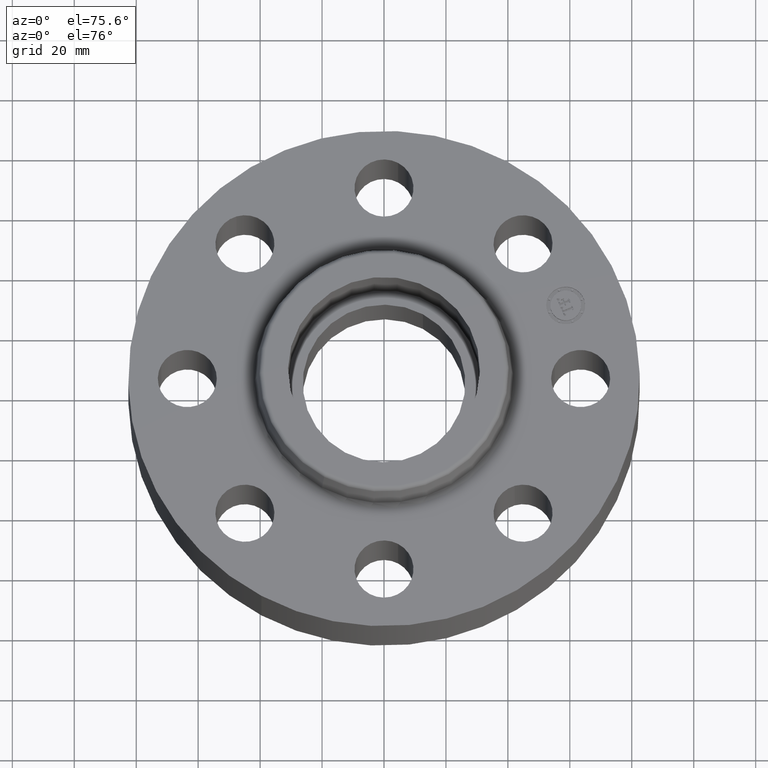
[diagram: clean part render]
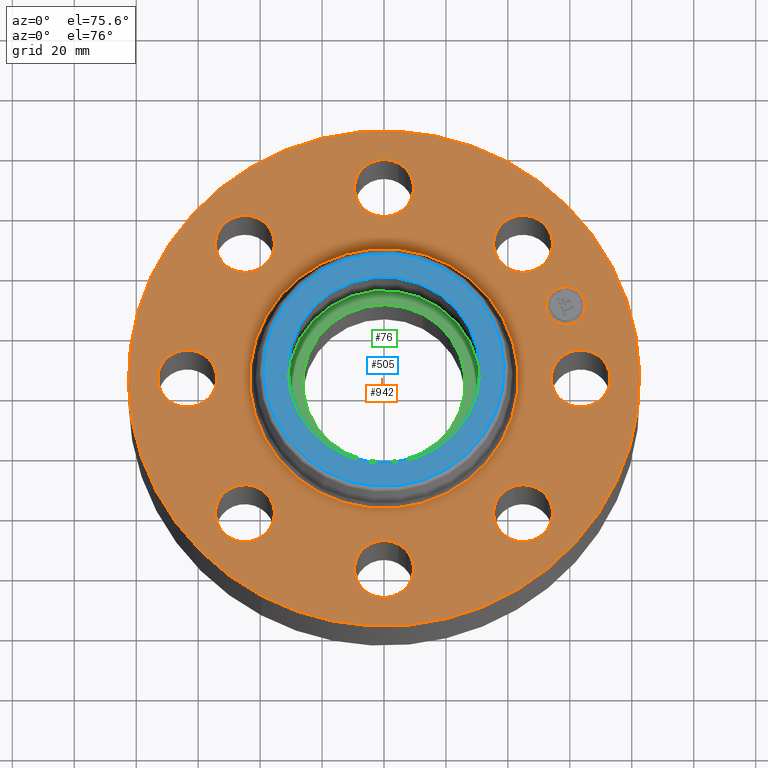
[diagram: same view with three faces highlighted in distinct colors, each labeled with its STEP entity id]
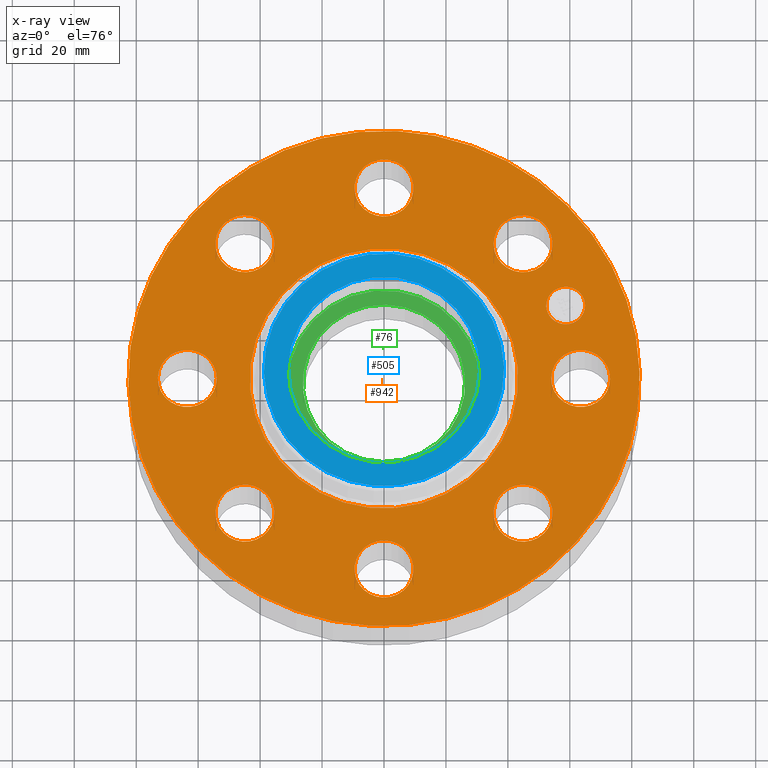
[diagram: x-ray of the same camera — body ghosted, the three highlighted faces saturated]
A machine part, auxiliary view with three faces highlighted in distinct colors.
The next image is the same camera in x-ray (body ghosted, the three faces saturated) — at least one of them is partly hidden behind the body in this view.
Their STEP definitions:

[orange] entity #942 — the highlighted planar face has unit normal (0, 0, -1).
#306=AXIS2_PLACEMENT_3D('Circle Axis2P3D',#304,#305,$) ;
#325=AXIS2_PLACEMENT_3D('Circle Axis2P3D',#323,#324,$) ;
#342=AXIS2_PLACEMENT_3D('Circle Axis2P3D',#340,#341,$) ;
#377=AXIS2_PLACEMENT_3D('Circle Axis2P3D',#375,#376,$) ;
#527=AXIS2_PLACEMENT_3D('Circle Axis2P3D',#525,#526,$) ;
#539=AXIS2_PLACEMENT_3D('Circle Axis2P3D',#537,#538,$) ;
#570=AXIS2_PLACEMENT_3D('Circle Axis2P3D',#568,#569,$) ;
#582=AXIS2_PLACEMENT_3D('Circle Axis2P3D',#580,#581,$) ;
#613=AXIS2_PLACEMENT_3D('Circle Axis2P3D',#611,#612,$) ;
#625=AXIS2_PLACEMENT_3D('Circle Axis2P3D',#623,#624,$) ;
#656=AXIS2_PLACEMENT_3D('Circle Axis2P3D',#654,#655,$) ;
#668=AXIS2_PLACEMENT_3D('Circle Axis2P3D',#666,#667,$) ;
#699=AXIS2_PLACEMENT_3D('Circle Axis2P3D',#697,#698,$) ;
#711=AXIS2_PLACEMENT_3D('Circle Axis2P3D',#709,#710,$) ;
#742=AXIS2_PLACEMENT_3D('Circle Axis2P3D',#740,#741,$) ;
#754=AXIS2_PLACEMENT_3D('Circle Axis2P3D',#752,#753,$) ;
#785=AXIS2_PLACEMENT_3D('Circle Axis2P3D',#783,#784,$) ;
#797=AXIS2_PLACEMENT_3D('Circle Axis2P3D',#795,#796,$) ;
#828=AXIS2_PLACEMENT_3D('Circle Axis2P3D',#826,#827,$) ;
#840=AXIS2_PLACEMENT_3D('Circle Axis2P3D',#838,#839,$) ;
#882=AXIS2_PLACEMENT_3D('Plane Axis2P3D',#879,#880,#881) ;
#926=AXIS2_PLACEMENT_3D('Circle Axis2P3D',#924,#925,$) ;
#935=AXIS2_PLACEMENT_3D('Circle Axis2P3D',#933,#934,$) ;
#301=CARTESIAN_POINT('Vertex',(-1.55813300047,-2.85214332616,1.)) ;
#304=CARTESIAN_POINT('Axis2P3D Location',(0.,0.,1.)) ;
#308=CARTESIAN_POINT('Vertex',(1.55813300047,2.85214332616,1.)) ;
#323=CARTESIAN_POINT('Axis2P3D Location',(0.,0.,1.)) ;
#340=CARTESIAN_POINT('Axis2P3D Location',(0.,0.,1.)) ;
#344=CARTESIAN_POINT('Vertex',(0.81758641395,1.49658189218,1.)) ;
#346=CARTESIAN_POINT('Vertex',(-0.81758641395,-1.49658189218,1.)) ;
#375=CARTESIAN_POINT('Axis2P3D Location',(0.,0.,1.)) ;
#515=CARTESIAN_POINT('Vertex',(2.12759806422,1.87334427715,1.)) ;
#522=CARTESIAN_POINT('Vertex',(1.40793584173,1.66218962879,1.)) ;
#525=CARTESIAN_POINT('Axis2P3D Location',(1.76776695297,1.76776695297,1.)) ;
#537=CARTESIAN_POINT('Axis2P3D Location',(1.76776695297,1.76776695297,1.)) ;
#558=CARTESIAN_POINT('Vertex',(0.179784576977,2.82909346072,1.)) ;
#565=CARTESIAN_POINT('Vertex',(-0.179784576977,2.1709065393,1.)) ;
#568=CARTESIAN_POINT('Axis2P3D Location',(-4.59242549682E-016,2.50000000001,1.)) ;
#580=CARTESIAN_POINT('Axis2P3D Location',(-4.59242549682E-016,2.50000000001,1.)) ;
#601=CARTESIAN_POINT('Vertex',(-1.87334427715,2.12759806422,1.)) ;
#608=CARTESIAN_POINT('Vertex',(-1.66218962879,1.40793584173,1.)) ;
#611=CARTESIAN_POINT('Axis2P3D Location',(-1.76776695297,1.76776695297,1.)) ;
#623=CARTESIAN_POINT('Axis2P3D Location',(-1.76776695297,1.76776695297,1.)) ;
#644=CARTESIAN_POINT('Vertex',(-2.82909346072,0.179784576977,1.)) ;
#651=CARTESIAN_POINT('Vertex',(-2.1709065393,-0.179784576977,1.)) ;
#654=CARTESIAN_POINT('Axis2P3D Location',(-2.50000000001,-3.06161699788E-016,1.)) ;
#666=CARTESIAN_POINT('Axis2P3D Location',(-2.50000000001,-3.06161699788E-016,1.)) ;
#687=CARTESIAN_POINT('Vertex',(-2.12759806422,-1.87334427715,1.)) ;
#694=CARTESIAN_POINT('Vertex',(-1.40793584173,-1.66218962879,1.)) ;
#697=CARTESIAN_POINT('Axis2P3D Location',(-1.76776695297,-1.76776695297,1.)) ;
#709=CARTESIAN_POINT('Axis2P3D Location',(-1.76776695297,-1.76776695297,1.)) ;
#730=CARTESIAN_POINT('Vertex',(-0.179784576977,-2.82909346072,1.)) ;
#737=CARTESIAN_POINT('Vertex',(0.179784576977,-2.1709065393,1.)) ;
#740=CARTESIAN_POINT('Axis2P3D Location',(1.53080849894E-016,-2.50000000001,1.)) ;
#752=CARTESIAN_POINT('Axis2P3D Location',(1.53080849894E-016,-2.50000000001,1.)) ;
#773=CARTESIAN_POINT('Vertex',(1.87334427715,-2.12759806422,1.)) ;
#780=CARTESIAN_POINT('Vertex',(1.66218962879,-1.40793584173,1.)) ;
#783=CARTESIAN_POINT('Axis2P3D Location',(1.76776695297,-1.76776695297,1.)) ;
#795=CARTESIAN_POINT('Axis2P3D Location',(1.76776695297,-1.76776695297,1.)) ;
#816=CARTESIAN_POINT('Vertex',(2.1709065393,0.179784576977,1.)) ;
#823=CARTESIAN_POINT('Vertex',(2.82909346072,-0.179784576977,1.)) ;
#826=CARTESIAN_POINT('Axis2P3D Location',(2.50000000001,0.,1.)) ;
#838=CARTESIAN_POINT('Axis2P3D Location',(2.50000000001,0.,1.)) ;
#879=CARTESIAN_POINT('Axis2P3D Location',(0.,3.25000000001,1.)) ;
#924=CARTESIAN_POINT('Axis2P3D Location',(2.30969883129,0.956708580917,1.)) ;
#928=CARTESIAN_POINT('Vertex',(2.21498468178,1.18536876521,1.)) ;
#930=CARTESIAN_POINT('Vertex',(2.4044129808,0.728048396619,1.)) ;
#933=CARTESIAN_POINT('Axis2P3D Location',(2.30969883129,0.956708580917,1.)) ;
#305=DIRECTION('Axis2P3D Direction',(0.,0.,-0.0393700787402)) ;
#324=DIRECTION('Axis2P3D Direction',(0.,0.,-0.0393700787402)) ;
#341=DIRECTION('Axis2P3D Direction',(0.,0.,-0.0393700787402)) ;
#376=DIRECTION('Axis2P3D Direction',(0.,0.,-0.0393700787402)) ;
#526=DIRECTION('Axis2P3D Direction',(0.,0.,-0.0393700787402)) ;
#538=DIRECTION('Axis2P3D Direction',(0.,0.,-0.0393700787402)) ;
#569=DIRECTION('Axis2P3D Direction',(0.,0.,-0.0393700787402)) ;
#581=DIRECTION('Axis2P3D Direction',(0.,0.,-0.0393700787402)) ;
#612=DIRECTION('Axis2P3D Direction',(0.,0.,-0.0393700787402)) ;
#624=DIRECTION('Axis2P3D Direction',(0.,0.,-0.0393700787402)) ;
#655=DIRECTION('Axis2P3D Direction',(-0.,0.,-0.0393700787402)) ;
#667=DIRECTION('Axis2P3D Direction',(-0.,0.,-0.0393700787402)) ;
#698=DIRECTION('Axis2P3D Direction',(-0.,0.,-0.0393700787402)) ;
#710=DIRECTION('Axis2P3D Direction',(-0.,0.,-0.0393700787402)) ;
#741=DIRECTION('Axis2P3D Direction',(0.,-0.,-0.0393700787402)) ;
#753=DIRECTION('Axis2P3D Direction',(0.,-0.,-0.0393700787402)) ;
#784=DIRECTION('Axis2P3D Direction',(0.,-0.,-0.0393700787402)) ;
#796=DIRECTION('Axis2P3D Direction',(0.,-0.,-0.0393700787402)) ;
#827=DIRECTION('Axis2P3D Direction',(0.,-0.,-0.0393700787402)) ;
#839=DIRECTION('Axis2P3D Direction',(0.,-0.,-0.0393700787402)) ;
#880=DIRECTION('Axis2P3D Direction',(0.,0.,-0.0393700787402)) ;
#881=DIRECTION('Axis2P3D XDirection',(0.0393700787402,0.,0.)) ;
#925=DIRECTION('Axis2P3D Direction',(0.,0.,-0.0393700787402)) ;
#934=DIRECTION('Axis2P3D Direction',(0.,0.,-0.0393700787402)) ;
#885=ORIENTED_EDGE('',*,*,#327,.F.) ;
#886=ORIENTED_EDGE('',*,*,#310,.F.) ;
#889=ORIENTED_EDGE('',*,*,#830,.T.) ;
#890=ORIENTED_EDGE('',*,*,#842,.T.) ;
#893=ORIENTED_EDGE('',*,*,#379,.T.) ;
#894=ORIENTED_EDGE('',*,*,#348,.T.) ;
#897=ORIENTED_EDGE('',*,*,#787,.T.) ;
#898=ORIENTED_EDGE('',*,*,#799,.T.) ;
#901=ORIENTED_EDGE('',*,*,#744,.T.) ;
#902=ORIENTED_EDGE('',*,*,#756,.T.) ;
#905=ORIENTED_EDGE('',*,*,#701,.T.) ;
#906=ORIENTED_EDGE('',*,*,#713,.T.) ;
#909=ORIENTED_EDGE('',*,*,#658,.T.) ;
#910=ORIENTED_EDGE('',*,*,#670,.T.) ;
#913=ORIENTED_EDGE('',*,*,#615,.T.) ;
#914=ORIENTED_EDGE('',*,*,#627,.T.) ;
#917=ORIENTED_EDGE('',*,*,#572,.T.) ;
#918=ORIENTED_EDGE('',*,*,#584,.T.) ;
#921=ORIENTED_EDGE('',*,*,#529,.T.) ;
#922=ORIENTED_EDGE('',*,*,#541,.T.) ;
#939=ORIENTED_EDGE('',*,*,#932,.T.) ;
#940=ORIENTED_EDGE('',*,*,#937,.T.) ;
#891=FACE_BOUND('',#888,.T.) ;
#895=FACE_BOUND('',#892,.T.) ;
#899=FACE_BOUND('',#896,.T.) ;
#903=FACE_BOUND('',#900,.T.) ;
#907=FACE_BOUND('',#904,.T.) ;
#911=FACE_BOUND('',#908,.T.) ;
#915=FACE_BOUND('',#912,.T.) ;
#919=FACE_BOUND('',#916,.T.) ;
#923=FACE_BOUND('',#920,.T.) ;
#941=FACE_BOUND('',#938,.T.) ;
#942=ADVANCED_FACE('PartBody',(#887,#891,#895,#899,#903,#907,#911,#915,#919,#923,#941),#883,.F.) ;
#307=CIRCLE('generated circle',#306,3.25000000001) ;
#326=CIRCLE('generated circle',#325,3.25000000001) ;
#343=CIRCLE('generated circle',#342,1.70534597788) ;
#378=CIRCLE('generated circle',#377,1.70534597788) ;
#528=CIRCLE('generated circle',#527,0.375000000001) ;
#540=CIRCLE('generated circle',#539,0.375000000001) ;
#571=CIRCLE('generated circle',#570,0.375000000002) ;
#583=CIRCLE('generated circle',#582,0.375000000002) ;
#614=CIRCLE('generated circle',#613,0.375000000001) ;
#626=CIRCLE('generated circle',#625,0.375000000001) ;
#657=CIRCLE('generated circle',#656,0.375000000001) ;
#669=CIRCLE('generated circle',#668,0.375000000001) ;
#700=CIRCLE('generated circle',#699,0.375000000001) ;
#712=CIRCLE('generated circle',#711,0.375000000001) ;
#743=CIRCLE('generated circle',#742,0.375000000002) ;
#755=CIRCLE('generated circle',#754,0.375000000002) ;
#786=CIRCLE('generated circle',#785,0.375000000001) ;
#798=CIRCLE('generated circle',#797,0.375000000001) ;
#829=CIRCLE('generated circle',#828,0.375000000002) ;
#841=CIRCLE('generated circle',#840,0.375000000002) ;
#927=CIRCLE('generated circle',#926,0.247500000001) ;
#936=CIRCLE('generated circle',#935,0.247500000001) ;
#310=EDGE_CURVE('',#302,#309,#307,.T.) ;
#327=EDGE_CURVE('',#309,#302,#326,.T.) ;
#348=EDGE_CURVE('',#345,#347,#343,.T.) ;
#379=EDGE_CURVE('',#347,#345,#378,.T.) ;
#529=EDGE_CURVE('',#516,#523,#528,.T.) ;
#541=EDGE_CURVE('',#523,#516,#540,.T.) ;
#572=EDGE_CURVE('',#559,#566,#571,.T.) ;
#584=EDGE_CURVE('',#566,#559,#583,.T.) ;
#615=EDGE_CURVE('',#602,#609,#614,.T.) ;
#627=EDGE_CURVE('',#609,#602,#626,.T.) ;
#658=EDGE_CURVE('',#645,#652,#657,.T.) ;
#670=EDGE_CURVE('',#652,#645,#669,.T.) ;
#701=EDGE_CURVE('',#688,#695,#700,.T.) ;
#713=EDGE_CURVE('',#695,#688,#712,.T.) ;
#744=EDGE_CURVE('',#731,#738,#743,.T.) ;
#756=EDGE_CURVE('',#738,#731,#755,.T.) ;
#787=EDGE_CURVE('',#774,#781,#786,.T.) ;
#799=EDGE_CURVE('',#781,#774,#798,.T.) ;
#830=EDGE_CURVE('',#817,#824,#829,.T.) ;
#842=EDGE_CURVE('',#824,#817,#841,.T.) ;
#932=EDGE_CURVE('',#929,#931,#927,.T.) ;
#937=EDGE_CURVE('',#931,#929,#936,.T.) ;
#884=EDGE_LOOP('',(#885,#886)) ;
#888=EDGE_LOOP('',(#889,#890)) ;
#892=EDGE_LOOP('',(#893,#894)) ;
#896=EDGE_LOOP('',(#897,#898)) ;
#900=EDGE_LOOP('',(#901,#902)) ;
#904=EDGE_LOOP('',(#905,#906)) ;
#908=EDGE_LOOP('',(#909,#910)) ;
#912=EDGE_LOOP('',(#913,#914)) ;
#916=EDGE_LOOP('',(#917,#918)) ;
#920=EDGE_LOOP('',(#921,#922)) ;
#938=EDGE_LOOP('',(#939,#940)) ;
#887=FACE_OUTER_BOUND('',#884,.T.) ;
#883=PLANE('',#882) ;
#302=VERTEX_POINT('',#301) ;
#309=VERTEX_POINT('',#308) ;
#345=VERTEX_POINT('',#344) ;
#347=VERTEX_POINT('',#346) ;
#516=VERTEX_POINT('',#515) ;
#523=VERTEX_POINT('',#522) ;
#559=VERTEX_POINT('',#558) ;
#566=VERTEX_POINT('',#565) ;
#602=VERTEX_POINT('',#601) ;
#609=VERTEX_POINT('',#608) ;
#645=VERTEX_POINT('',#644) ;
#652=VERTEX_POINT('',#651) ;
#688=VERTEX_POINT('',#687) ;
#695=VERTEX_POINT('',#694) ;
#731=VERTEX_POINT('',#730) ;
#738=VERTEX_POINT('',#737) ;
#774=VERTEX_POINT('',#773) ;
#781=VERTEX_POINT('',#780) ;
#817=VERTEX_POINT('',#816) ;
#824=VERTEX_POINT('',#823) ;
#929=VERTEX_POINT('',#928) ;
#931=VERTEX_POINT('',#930) ;

[blue] entity #505 — the highlighted planar face has unit normal (0, 0, -1).
#449=AXIS2_PLACEMENT_3D('Circle Axis2P3D',#447,#448,$) ;
#468=AXIS2_PLACEMENT_3D('Circle Axis2P3D',#466,#467,$) ;
#481=AXIS2_PLACEMENT_3D('Plane Axis2P3D',#478,#479,#480) ;
#489=AXIS2_PLACEMENT_3D('Circle Axis2P3D',#487,#488,$) ;
#498=AXIS2_PLACEMENT_3D('Circle Axis2P3D',#496,#497,$) ;
#444=CARTESIAN_POINT('Vertex',(0.732116429449,1.34013013497,1.44000000001)) ;
#447=CARTESIAN_POINT('Axis2P3D Location',(0.,0.,1.44000000001)) ;
#451=CARTESIAN_POINT('Vertex',(-0.732116429449,-1.34013013497,1.44000000001)) ;
#466=CARTESIAN_POINT('Axis2P3D Location',(0.,0.,1.44000000001)) ;
#478=CARTESIAN_POINT('Axis2P3D Location',(0.,1.52707015062,1.44000000001)) ;
#487=CARTESIAN_POINT('Axis2P3D Location',(6.99353086378E-017,-2.79741234551E-016,1.44000000001)) ;
#491=CARTESIAN_POINT('Vertex',(-1.07065072551,0.584899157099,1.44000000001)) ;
#493=CARTESIAN_POINT('Vertex',(1.07065072551,-0.584899157099,1.44000000001)) ;
#496=CARTESIAN_POINT('Axis2P3D Location',(-1.74838271595E-016,-2.79741234551E-016,1.44000000001)) ;
#448=DIRECTION('Axis2P3D Direction',(0.,0.,-0.0393700787402)) ;
#467=DIRECTION('Axis2P3D Direction',(0.,0.,-0.0393700787402)) ;
#479=DIRECTION('Axis2P3D Direction',(0.,0.,-0.0393700787402)) ;
#480=DIRECTION('Axis2P3D XDirection',(0.0393700787402,0.,0.)) ;
#488=DIRECTION('Axis2P3D Direction',(0.,0.,-0.0393700787402)) ;
#497=DIRECTION('Axis2P3D Direction',(0.,0.,-0.0393700787402)) ;
#484=ORIENTED_EDGE('',*,*,#453,.F.) ;
#485=ORIENTED_EDGE('',*,*,#470,.F.) ;
#502=ORIENTED_EDGE('',*,*,#495,.T.) ;
#503=ORIENTED_EDGE('',*,*,#500,.T.) ;
#504=FACE_BOUND('',#501,.T.) ;
#505=ADVANCED_FACE('PartBody',(#486,#504),#482,.F.) ;
#450=CIRCLE('generated circle',#449,1.52707015062) ;
#469=CIRCLE('generated circle',#468,1.52707015062) ;
#490=CIRCLE('generated circle',#489,1.22) ;
#499=CIRCLE('generated circle',#498,1.22) ;
#453=EDGE_CURVE('',#445,#452,#450,.T.) ;
#470=EDGE_CURVE('',#452,#445,#469,.T.) ;
#495=EDGE_CURVE('',#492,#494,#490,.T.) ;
#500=EDGE_CURVE('',#494,#492,#499,.T.) ;
#483=EDGE_LOOP('',(#484,#485)) ;
#501=EDGE_LOOP('',(#502,#503)) ;
#486=FACE_OUTER_BOUND('',#483,.T.) ;
#482=PLANE('',#481) ;
#445=VERTEX_POINT('',#444) ;
#452=VERTEX_POINT('',#451) ;
#492=VERTEX_POINT('',#491) ;
#494=VERTEX_POINT('',#493) ;

[green] entity #76 — the highlighted planar face has unit normal (0, 0, -1).
#38=AXIS2_PLACEMENT_3D('Plane Axis2P3D',#35,#36,#37) ;
#42=AXIS2_PLACEMENT_3D('Circle Axis2P3D',#40,#41,$) ;
#51=AXIS2_PLACEMENT_3D('Circle Axis2P3D',#49,#50,$) ;
#60=AXIS2_PLACEMENT_3D('Circle Axis2P3D',#58,#59,$) ;
#69=AXIS2_PLACEMENT_3D('Circle Axis2P3D',#67,#68,$) ;
#35=CARTESIAN_POINT('Axis2P3D Location',(0.,-6.99353086378E-017,0.750000000003)) ;
#40=CARTESIAN_POINT('Axis2P3D Location',(0.,-6.99353086378E-017,0.750000000003)) ;
#44=CARTESIAN_POINT('Vertex',(-1.07065072551,0.584899157099,0.750000000003)) ;
#46=CARTESIAN_POINT('Vertex',(1.07065072551,-0.584899157099,0.750000000003)) ;
#49=CARTESIAN_POINT('Axis2P3D Location',(0.,-6.99353086378E-017,0.750000000003)) ;
#58=CARTESIAN_POINT('Axis2P3D Location',(1.39870617276E-016,0.,0.750000000003)) ;
#62=CARTESIAN_POINT('Vertex',(0.495486294149,0.906981577717,0.750000000003)) ;
#64=CARTESIAN_POINT('Vertex',(-0.495486294149,-0.906981577717,0.750000000003)) ;
#67=CARTESIAN_POINT('Axis2P3D Location',(1.39870617276E-016,3.49676543189E-017,0.750000000003)) ;
#36=DIRECTION('Axis2P3D Direction',(0.,0.,-0.0393700787402)) ;
#37=DIRECTION('Axis2P3D XDirection',(0.0393700787402,0.,0.)) ;
#41=DIRECTION('Axis2P3D Direction',(0.,0.,-0.0393700787402)) ;
#50=DIRECTION('Axis2P3D Direction',(0.,0.,-0.0393700787402)) ;
#59=DIRECTION('Axis2P3D Direction',(0.,0.,-0.0393700787402)) ;
#68=DIRECTION('Axis2P3D Direction',(0.,0.,-0.0393700787402)) ;
#55=ORIENTED_EDGE('',*,*,#48,.F.) ;
#56=ORIENTED_EDGE('',*,*,#53,.F.) ;
#73=ORIENTED_EDGE('',*,*,#66,.T.) ;
#74=ORIENTED_EDGE('',*,*,#71,.T.) ;
#75=FACE_BOUND('',#72,.T.) ;
#76=ADVANCED_FACE('PartBody',(#57,#75),#39,.F.) ;
#43=CIRCLE('generated circle',#42,1.22) ;
#52=CIRCLE('generated circle',#51,1.22) ;
#61=CIRCLE('generated circle',#60,1.0335) ;
#70=CIRCLE('generated circle',#69,1.0335) ;
#48=EDGE_CURVE('',#45,#47,#43,.T.) ;
#53=EDGE_CURVE('',#47,#45,#52,.T.) ;
#66=EDGE_CURVE('',#63,#65,#61,.T.) ;
#71=EDGE_CURVE('',#65,#63,#70,.T.) ;
#54=EDGE_LOOP('',(#55,#56)) ;
#72=EDGE_LOOP('',(#73,#74)) ;
#57=FACE_OUTER_BOUND('',#54,.T.) ;
#39=PLANE('',#38) ;
#45=VERTEX_POINT('',#44) ;
#47=VERTEX_POINT('',#46) ;
#63=VERTEX_POINT('',#62) ;
#65=VERTEX_POINT('',#64) ;